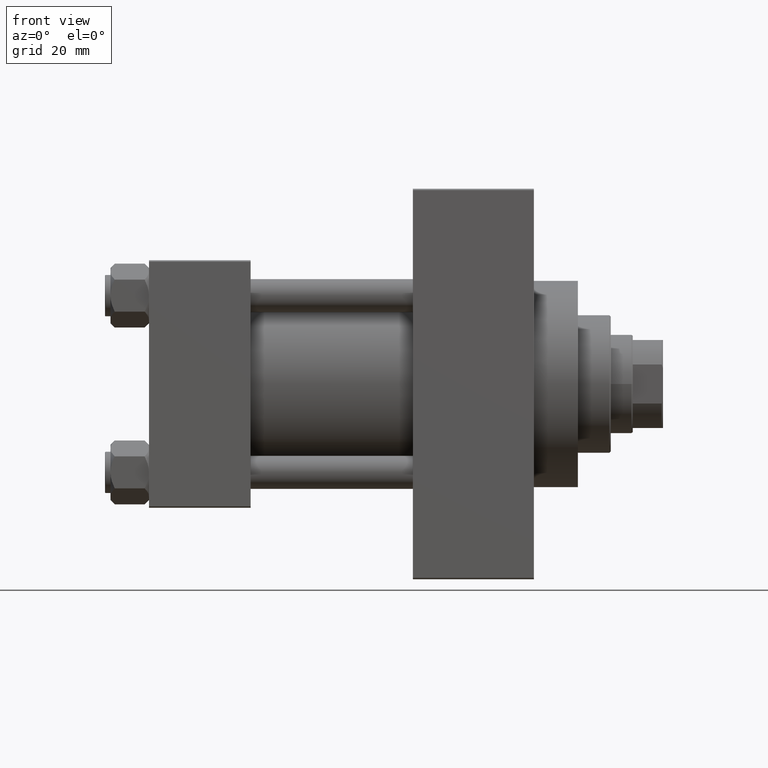
[diagram: clean part render]
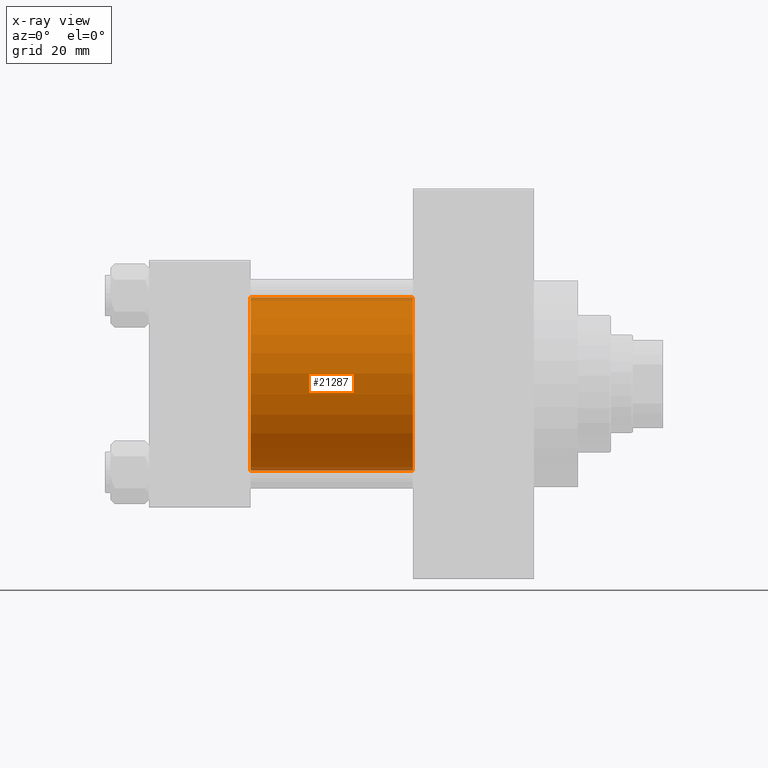
[diagram: x-ray — body ghosted, one internal face saturated and labeled with its STEP entity id]
A machine part, front view, then the same camera in x-ray: the body is ghosted and one INTERNAL B-rep face — a face not visible from any outside direction — is saturated and labeled: STEP entity #21287.
In plain terms, the highlighted cylindrical surface (partial cylindrical patch) has radius 31.5 mm, axis along (-1, -0, -0).
Its self-contained STEP definition (entity closure, byte-faithful):
#1026 = AXIS2_PLACEMENT_3D ( 'NONE', #29293, #13945, #25575 ) ;
#2808 = AXIS2_PLACEMENT_3D ( 'NONE', #6058, #28569, #9768 ) ;
#3312 = EDGE_CURVE ( 'NONE', #16128, #17166, #28149, .T. ) ;
#3713 = EDGE_LOOP ( 'NONE', ( #31961, #9070, #14364, #5619 ) ) ;
#4824 = VECTOR ( 'NONE', #31368, 1000.000000000000000 ) ;
#5619 = ORIENTED_EDGE ( 'NONE', *, *, #3312, .F. ) ;
#6058 = CARTESIAN_POINT ( 'NONE',  ( 37.00000000000000000, -2.602085213965210642E-15, 0.000000000000000000 ) ) ;
#6947 = VERTEX_POINT ( 'NONE', #16411 ) ;
#9070 = ORIENTED_EDGE ( 'NONE', *, *, #21101, .T. ) ;
#9768 = DIRECTION ( 'NONE',  ( 0.000000000000000000, 0.000000000000000000, -1.000000000000000000 ) ) ;
#10310 = CIRCLE ( 'NONE', #43538, 31.50000000000000000 ) ;
#13000 = CARTESIAN_POINT ( 'NONE',  ( 96.00000000000000000, -2.602085213965210642E-15, 31.50000000000000000 ) ) ;
#13481 = EDGE_CURVE ( 'NONE', #16128, #29612, #10310, .T. ) ;
#13945 = DIRECTION ( 'NONE',  ( -1.000000000000000000, -0.000000000000000000, -0.000000000000000000 ) ) ;
#14194 = CYLINDRICAL_SURFACE ( 'NONE', #1026, 31.50000000000000000 ) ;
#14364 = ORIENTED_EDGE ( 'NONE', *, *, #31538, .F. ) ;
#15437 = DIRECTION ( 'NONE',  ( 0.000000000000000000, 0.000000000000000000, -1.000000000000000000 ) ) ;
#16128 = VERTEX_POINT ( 'NONE', #13000 ) ;
#16411 = CARTESIAN_POINT ( 'NONE',  ( 37.00000000000000000, 1.255552203348951850E-15, -31.50000000000000000 ) ) ;
#17166 = VERTEX_POINT ( 'NONE', #44690 ) ;
#19437 = DIRECTION ( 'NONE',  ( -1.000000000000000000, -0.000000000000000000, -0.000000000000000000 ) ) ;
#21101 = EDGE_CURVE ( 'NONE', #29612, #6947, #33791, .T. ) ;
#21287 = ADVANCED_FACE ( 'NONE', ( #40443 ), #14194, .F. ) ;
#23111 = CARTESIAN_POINT ( 'NONE',  ( 96.00000000000000000, -2.602085213965210642E-15, 0.000000000000000000 ) ) ;
#23156 = CARTESIAN_POINT ( 'NONE',  ( 96.00000000000000000, 1.255552203348951850E-15, -31.50000000000000000 ) ) ;
#25575 = DIRECTION ( 'NONE',  ( 0.000000000000000000, 0.000000000000000000, 1.000000000000000000 ) ) ;
#28149 = LINE ( 'NONE', #43271, #4824 ) ;
#28569 = DIRECTION ( 'NONE',  ( 1.000000000000000000, 0.000000000000000000, 0.000000000000000000 ) ) ;
#29293 = CARTESIAN_POINT ( 'NONE',  ( 96.00000000000000000, -2.602085213965210642E-15, 0.000000000000000000 ) ) ;
#29424 = VECTOR ( 'NONE', #19437, 1000.000000000000000 ) ;
#29612 = VERTEX_POINT ( 'NONE', #32189 ) ;
#31368 = DIRECTION ( 'NONE',  ( -1.000000000000000000, -0.000000000000000000, -0.000000000000000000 ) ) ;
#31538 = EDGE_CURVE ( 'NONE', #17166, #6947, #38367, .T. ) ;
#31961 = ORIENTED_EDGE ( 'NONE', *, *, #13481, .T. ) ;
#32189 = CARTESIAN_POINT ( 'NONE',  ( 96.00000000000000000, 1.255552203348951850E-15, -31.50000000000000000 ) ) ;
#33791 = LINE ( 'NONE', #23156, #29424 ) ;
#38367 = CIRCLE ( 'NONE', #2808, 31.50000000000000000 ) ;
#40443 = FACE_OUTER_BOUND ( 'NONE', #3713, .T. ) ;
#43271 = CARTESIAN_POINT ( 'NONE',  ( 96.00000000000000000, -2.602085213965210642E-15, 31.50000000000000000 ) ) ;
#43538 = AXIS2_PLACEMENT_3D ( 'NONE', #23111, #44670, #15437 ) ;
#44670 = DIRECTION ( 'NONE',  ( 1.000000000000000000, 0.000000000000000000, 0.000000000000000000 ) ) ;
#44690 = CARTESIAN_POINT ( 'NONE',  ( 37.00000000000000000, -2.602085213965210642E-15, 31.50000000000000000 ) ) ;